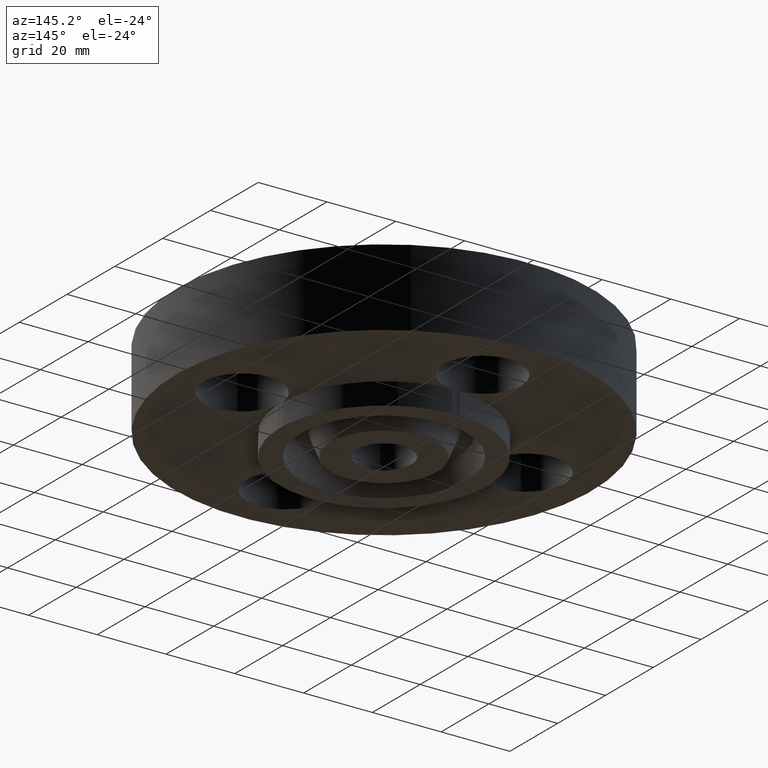
[diagram: clean part render]
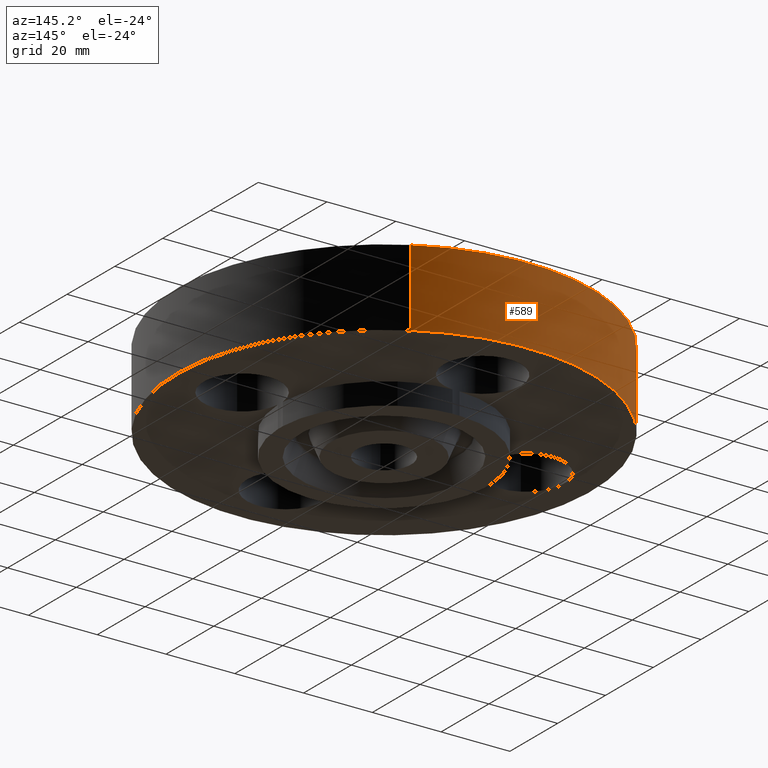
[diagram: same view with one face highlighted and labeled with its STEP entity id]
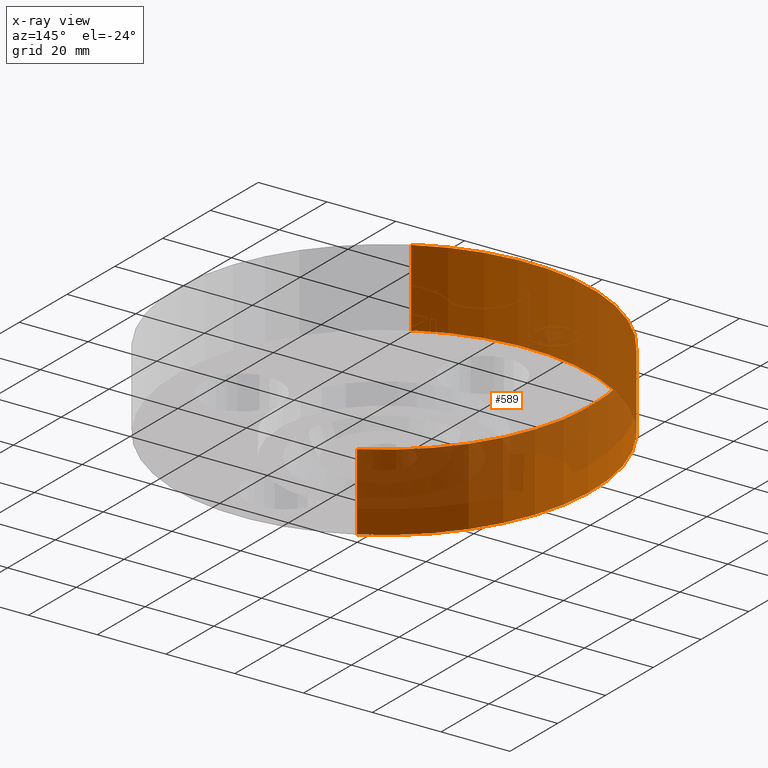
[diagram: x-ray of the same camera — body ghosted, the highlighted face saturated]
A machine part, auxiliary view. The second image highlights one B-rep face of the part: STEP entity #589.
The next image is the same camera in x-ray: the body ghosted, the highlighted face saturated — about 34% of this face is hidden behind the body in this view.
In plain terms, the highlighted cylindrical surface (partial cylindrical patch) has radius 60.325 mm, axis along (0, 0, -1).
Its self-contained STEP definition (entity closure, byte-faithful):
#446=AXIS2_PLACEMENT_3D('Circle Axis2P3D',#444,#445,$) ;
#562=AXIS2_PLACEMENT_3D('Cylinder Axis2P3D',#559,#560,#561) ;
#573=AXIS2_PLACEMENT_3D('Circle Axis2P3D',#571,#572,$) ;
#444=CARTESIAN_POINT('Axis2P3D Location',(0.,0.,0.)) ;
#448=CARTESIAN_POINT('Vertex',(-1.13863565419,-2.0842585845,1.39870617276E-016)) ;
#450=CARTESIAN_POINT('Vertex',(1.13863565419,2.0842585845,1.39870617276E-016)) ;
#559=CARTESIAN_POINT('Axis2P3D Location',(0.,0.,0.500000000002)) ;
#564=CARTESIAN_POINT('Line Origine',(-1.13863565419,-2.0842585845,0.440000000002)) ;
#568=CARTESIAN_POINT('Vertex',(-1.13863565419,-2.0842585845,0.880000000004)) ;
#571=CARTESIAN_POINT('Axis2P3D Location',(0.,0.,0.880000000004)) ;
#575=CARTESIAN_POINT('Vertex',(1.13863565419,2.0842585845,0.880000000004)) ;
#578=CARTESIAN_POINT('Line Origine',(1.13863565419,2.0842585845,0.440000000002)) ;
#445=DIRECTION('Axis2P3D Direction',(0.,0.,-0.0393700787402)) ;
#560=DIRECTION('Axis2P3D Direction',(0.,0.,-0.0393700787402)) ;
#561=DIRECTION('Axis2P3D XDirection',(0.0188750212049,0.0345504945626,0.)) ;
#565=DIRECTION('Vector Direction',(0.,0.,-0.0393700787402)) ;
#572=DIRECTION('Axis2P3D Direction',(0.,0.,-0.0393700787402)) ;
#579=DIRECTION('Vector Direction',(0.,0.,-0.0393700787402)) ;
#566=VECTOR('Line Direction',#565,0.0393700787402) ;
#580=VECTOR('Line Direction',#579,0.0393700787402) ;
#584=ORIENTED_EDGE('',*,*,#452,.F.) ;
#585=ORIENTED_EDGE('',*,*,#570,.T.) ;
#586=ORIENTED_EDGE('',*,*,#577,.T.) ;
#587=ORIENTED_EDGE('',*,*,#582,.F.) ;
#589=ADVANCED_FACE('PartBody',(#588),#563,.T.) ;
#447=CIRCLE('generated circle',#446,2.37500000001) ;
#574=CIRCLE('generated circle',#573,2.37500000001) ;
#563=CYLINDRICAL_SURFACE('generated cylinder',#562,2.37500000001) ;
#452=EDGE_CURVE('',#449,#451,#447,.T.) ;
#570=EDGE_CURVE('',#449,#569,#567,.F.) ;
#577=EDGE_CURVE('',#569,#576,#574,.T.) ;
#582=EDGE_CURVE('',#451,#576,#581,.F.) ;
#583=EDGE_LOOP('',(#584,#585,#586,#587)) ;
#588=FACE_OUTER_BOUND('',#583,.T.) ;
#567=LINE('Line',#564,#566) ;
#581=LINE('Line',#578,#580) ;
#449=VERTEX_POINT('',#448) ;
#451=VERTEX_POINT('',#450) ;
#569=VERTEX_POINT('',#568) ;
#576=VERTEX_POINT('',#575) ;